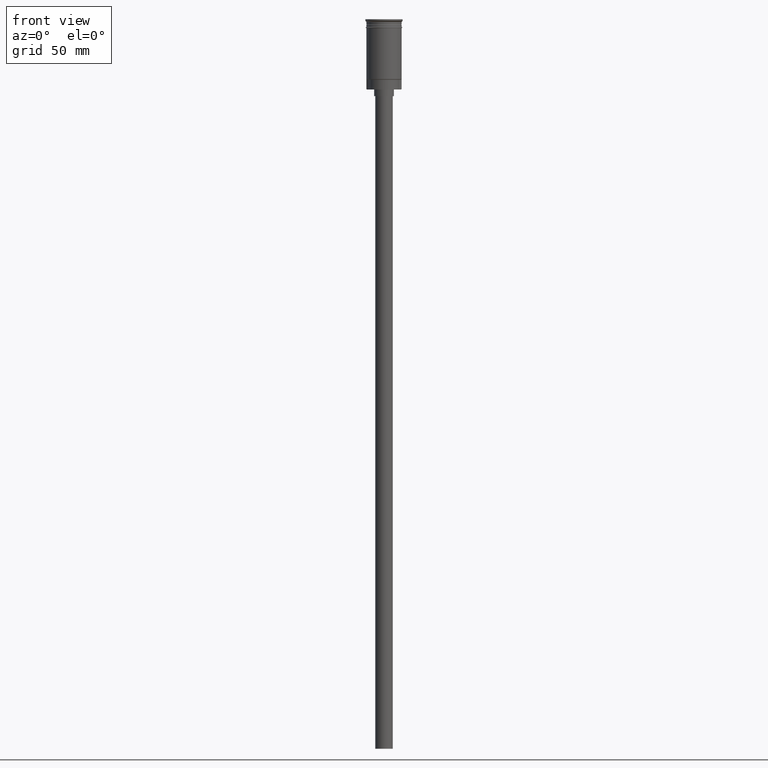
[diagram: clean part render]
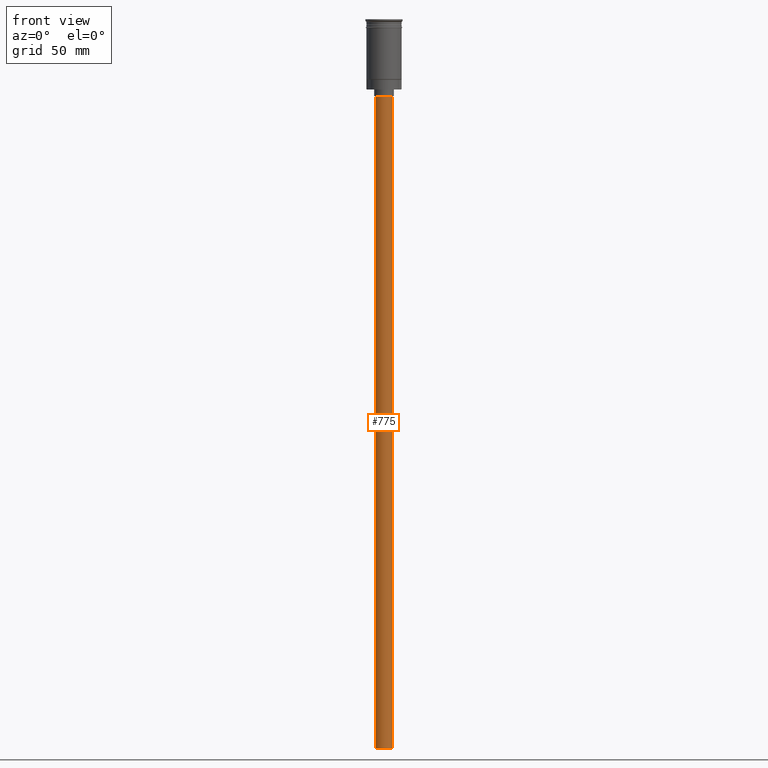
[diagram: same view with one face highlighted and labeled with its STEP entity id]
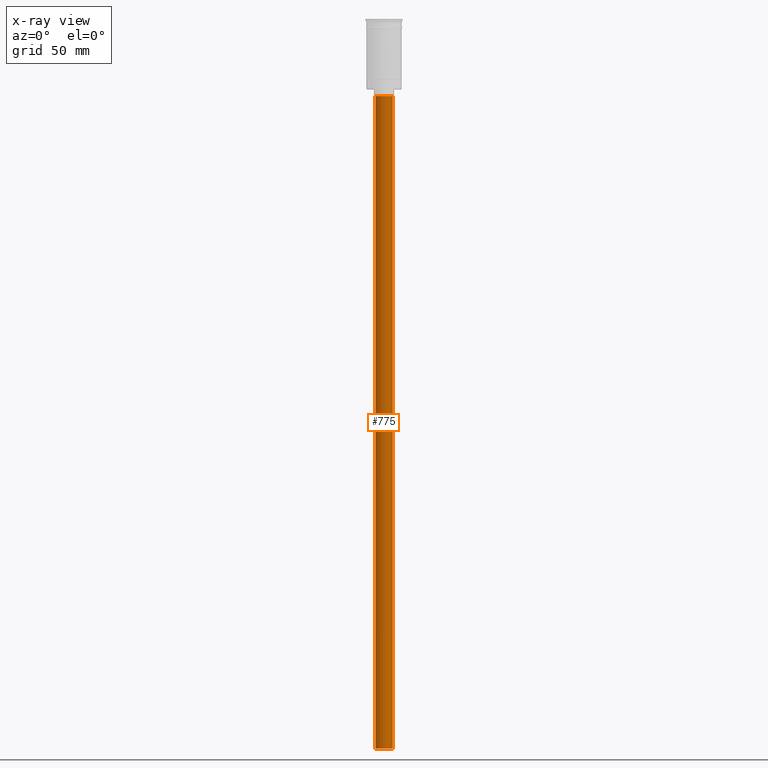
[diagram: x-ray of the same camera — body ghosted, the highlighted face saturated]
A machine part, front view. The second image highlights one B-rep face of the part: STEP entity #775.
The next image is the same camera in x-ray: the body ghosted, the highlighted face saturated — about 0% of this face is hidden behind the body in this view.
In plain terms, the highlighted cylindrical surface (edge-blend (fillet) strip) has radius 4 mm, axis along (-0, -0, 1).
Its self-contained STEP definition (entity closure, byte-faithful):
#38 = AXIS2_PLACEMENT_3D ( 'NONE', #174, #670, #1454 ) ;
#59 = VECTOR ( 'NONE', #651, 1000.000000000000000 ) ;
#130 = EDGE_CURVE ( 'NONE', #865, #781, #528, .T. ) ;
#134 = VERTEX_POINT ( 'NONE', #261 ) ;
#174 = CARTESIAN_POINT ( 'NONE',  ( 0.000000000000000000, 0.000000000000000000, -35.00000000000000000 ) ) ;
#205 = CARTESIAN_POINT ( 'NONE',  ( 4.000000000000000000, 0.000000000000000000, -35.00000000000000000 ) ) ;
#212 = CARTESIAN_POINT ( 'NONE',  ( 0.000000000000000000, 0.000000000000000000, -331.9999999999999432 ) ) ;
#261 = CARTESIAN_POINT ( 'NONE',  ( -4.000000000000000000, 4.898587196589412829E-16, -331.9999999999999432 ) ) ;
#305 = ORIENTED_EDGE ( 'NONE', *, *, #130, .T. ) ;
#335 = DIRECTION ( 'NONE',  ( -0.000000000000000000, -0.000000000000000000, 1.000000000000000000 ) ) ;
#372 = CIRCLE ( 'NONE', #38, 4.000000000000000000 ) ;
#389 = ORIENTED_EDGE ( 'NONE', *, *, #784, .F. ) ;
#415 = EDGE_CURVE ( 'NONE', #781, #1080, #372, .T. ) ;
#528 = LINE ( 'NONE', #1018, #59 ) ;
#529 = AXIS2_PLACEMENT_3D ( 'NONE', #212, #335, #1302 ) ;
#559 = DIRECTION ( 'NONE',  ( 0.000000000000000000, 0.000000000000000000, -1.000000000000000000 ) ) ;
#574 = ORIENTED_EDGE ( 'NONE', *, *, #1225, .F. ) ;
#651 = DIRECTION ( 'NONE',  ( -0.000000000000000000, -0.000000000000000000, 1.000000000000000000 ) ) ;
#670 = DIRECTION ( 'NONE',  ( 0.000000000000000000, 0.000000000000000000, -1.000000000000000000 ) ) ;
#685 = VECTOR ( 'NONE', #804, 1000.000000000000000 ) ;
#700 = FACE_OUTER_BOUND ( 'NONE', #1104, .T. ) ;
#775 = ADVANCED_FACE ( 'NONE', ( #700 ), #823, .T. ) ;
#781 = VERTEX_POINT ( 'NONE', #205 ) ;
#784 = EDGE_CURVE ( 'NONE', #134, #1080, #1568, .T. ) ;
#786 = CARTESIAN_POINT ( 'NONE',  ( -4.000000000000000000, 4.898587196589412829E-16, -35.00000000000000000 ) ) ;
#802 = ORIENTED_EDGE ( 'NONE', *, *, #415, .T. ) ;
#804 = DIRECTION ( 'NONE',  ( -0.000000000000000000, -0.000000000000000000, 1.000000000000000000 ) ) ;
#823 = CYLINDRICAL_SURFACE ( 'NONE', #529, 4.000000000000000000 ) ;
#865 = VERTEX_POINT ( 'NONE', #1292 ) ;
#929 = CARTESIAN_POINT ( 'NONE',  ( -4.000000000000000000, 4.898587196589412829E-16, -331.9999999999999432 ) ) ;
#1018 = CARTESIAN_POINT ( 'NONE',  ( 4.000000000000000000, 0.000000000000000000, -331.9999999999999432 ) ) ;
#1076 = AXIS2_PLACEMENT_3D ( 'NONE', #1444, #559, #1317 ) ;
#1080 = VERTEX_POINT ( 'NONE', #786 ) ;
#1104 = EDGE_LOOP ( 'NONE', ( #389, #574, #305, #802 ) ) ;
#1225 = EDGE_CURVE ( 'NONE', #865, #134, #1357, .T. ) ;
#1292 = CARTESIAN_POINT ( 'NONE',  ( 4.000000000000000000, 0.000000000000000000, -331.9999999999999432 ) ) ;
#1302 = DIRECTION ( 'NONE',  ( 1.000000000000000000, 0.000000000000000000, 0.000000000000000000 ) ) ;
#1317 = DIRECTION ( 'NONE',  ( -1.000000000000000000, 0.000000000000000000, 0.000000000000000000 ) ) ;
#1357 = CIRCLE ( 'NONE', #1076, 4.000000000000000000 ) ;
#1444 = CARTESIAN_POINT ( 'NONE',  ( 0.000000000000000000, 0.000000000000000000, -331.9999999999999432 ) ) ;
#1454 = DIRECTION ( 'NONE',  ( -1.000000000000000000, 0.000000000000000000, 0.000000000000000000 ) ) ;
#1568 = LINE ( 'NONE', #929, #685 ) ;